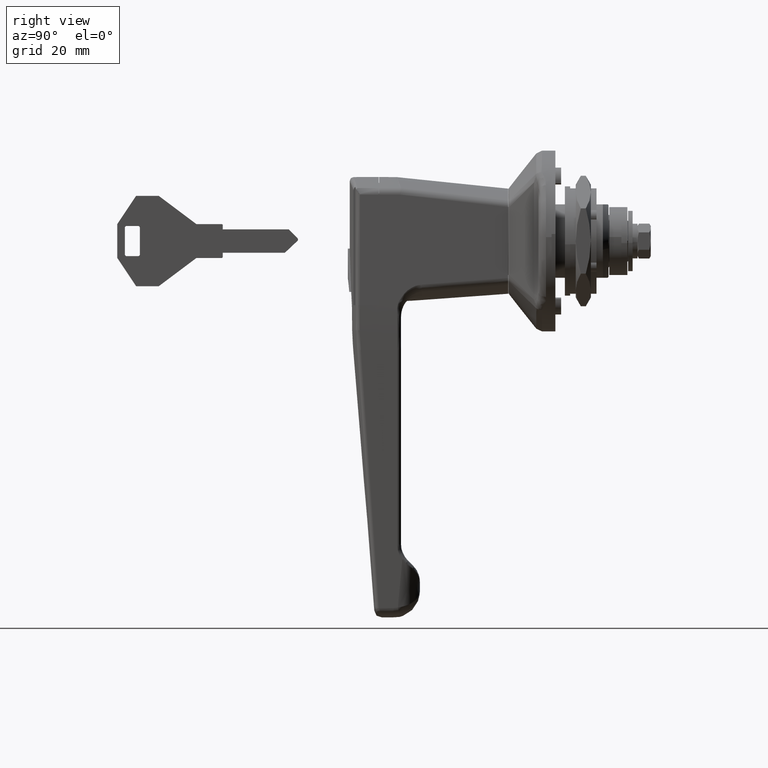
[diagram: clean part render]
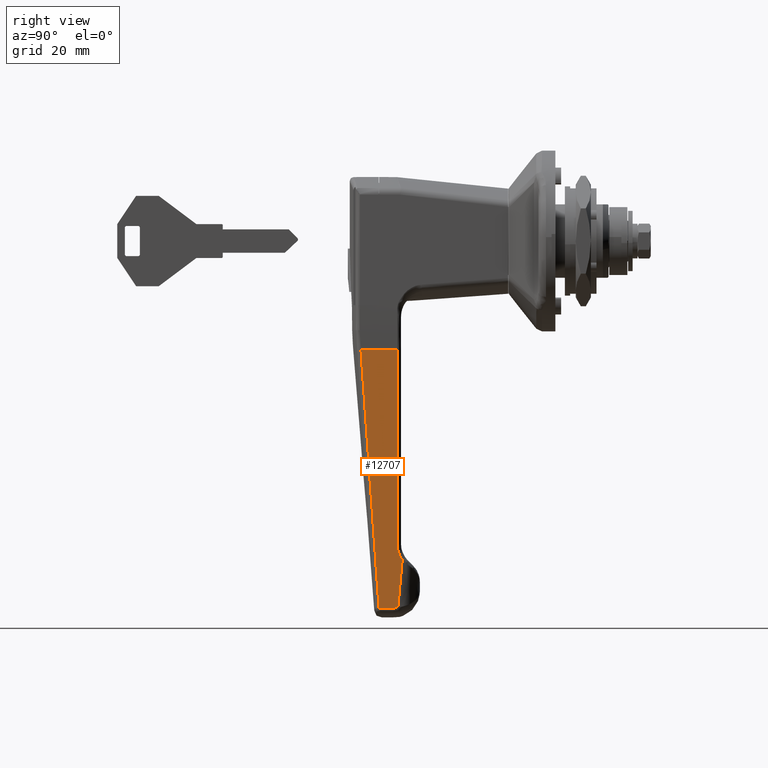
[diagram: same view with one face highlighted and labeled with its STEP entity id]
A machine part, right view. The second image highlights one B-rep face of the part: STEP entity #12707.
In plain terms, the highlighted face is a freeform B-spline surface patch.
Its self-contained STEP definition (entity closure, byte-faithful):
#7409=CARTESIAN_POINT('',(-42.0,-12.073825769527300,-28.897936895261651));
#7410=VERTEX_POINT('',#7409);
#7537=CARTESIAN_POINT('',(-42.0,-8.694515463715909,-80.579964860897306));
#7538=VERTEX_POINT('',#7537);
#7562=CARTESIAN_POINT('',(-42.0,-8.694515463715909,-80.579964860897306));
#7563=CARTESIAN_POINT('',(-42.0,-12.073825769527300,-28.897936895261651));
#7564=QUASI_UNIFORM_CURVE('',1,(#7562,#7563),.UNSPECIFIED.,.F.,.U.);
#7565=EDGE_CURVE('',#7538,#7410,#7564,.T.);
#7628=CARTESIAN_POINT('',(-40.691652699709749,-8.428069505302069,-84.654899160476305));
#7629=VERTEX_POINT('',#7628);
#7661=CARTESIAN_POINT('',(-40.691652699709749,-8.428069505302057,-84.654899160476475));
#7662=CARTESIAN_POINT('',(-42.0,-8.547558896826873,-82.827468852060449));
#7663=CARTESIAN_POINT('',(-42.0,-8.694515463715851,-80.579964860897306));
#7671=(BOUNDED_CURVE()B_SPLINE_CURVE(2,(#7661,#7662,#7663),.UNSPECIFIED.,.F.,.U.)CURVE()GEOMETRIC_REPRESENTATION_ITEM()QUASI_UNIFORM_CURVE()RATIONAL_B_SPLINE_CURVE((1.0,0.952127418682943,1.0))REPRESENTATION_ITEM(''));
#7672=EDGE_CURVE('',#7629,#7538,#7671,.T.);
#9767=CARTESIAN_POINT('',(-46.810766094548200,-7.592145216312230,-97.439242287070698));
#9768=VERTEX_POINT('',#9767);
#9836=CARTESIAN_POINT('',(-46.852808272678203,-7.607287954509600,-97.207654374694911));
#9837=VERTEX_POINT('',#9836);
#9838=CARTESIAN_POINT('',(-46.852808272678203,-7.607287954509600,-97.207654374694911));
#9839=CARTESIAN_POINT('',(-46.847095688982499,-7.602142254482236,-97.286350969162612));
#9840=CARTESIAN_POINT('',(-46.833181107993973,-7.597093499282290,-97.363564922254341));
#9841=CARTESIAN_POINT('',(-46.810766094548200,-7.592145216312230,-97.439242287070698));
#9842=QUASI_UNIFORM_CURVE('',3,(#9838,#9839,#9840,#9841),.UNSPECIFIED.,.F.,.U.);
#9843=EDGE_CURVE('',#9837,#9768,#9842,.T.);
#9878=CARTESIAN_POINT('',(-43.0,-7.592145216312230,-97.439242287070698));
#9879=VERTEX_POINT('',#9878);
#9893=CARTESIAN_POINT('',(-46.810766094548200,-7.592145216312230,-97.439242287070698));
#9894=CARTESIAN_POINT('',(-43.0,-7.592145216312230,-97.439242287070698));
#9895=QUASI_UNIFORM_CURVE('',1,(#9893,#9894),.UNSPECIFIED.,.F.,.U.);
#9896=EDGE_CURVE('',#9768,#9879,#9895,.T.);
#9957=CARTESIAN_POINT('',(-41.857309074168199,-7.601217082741310,-97.300500232609309));
#9958=VERTEX_POINT('',#9957);
#9972=CARTESIAN_POINT('',(-43.0,-7.592145216312230,-97.439242287070698));
#9973=CARTESIAN_POINT('',(-42.806731902380562,-7.592145216312231,-97.439242287070698));
#9974=CARTESIAN_POINT('',(-42.423050116375919,-7.593675854679708,-97.415833221979369));
#9975=CARTESIAN_POINT('',(-42.044944047653502,-7.598196396070048,-97.346697592098366));
#9976=CARTESIAN_POINT('',(-41.857309074168199,-7.601217082741361,-97.300500232609409));
#9977=B_SPLINE_CURVE_WITH_KNOTS('',3,(#9972,#9973,#9974,#9975,#9976),.UNSPECIFIED.,.F.,.U.,(4,1,4),(0.0,0.500000000000000,1.0),.UNSPECIFIED.);
#9978=EDGE_CURVE('',#9879,#9958,#9977,.T.);
#10398=CARTESIAN_POINT('',(-41.857309074168157,-7.601217082741328,-97.300500232609437));
#10399=CARTESIAN_POINT('',(-41.571539382778852,-7.803926360361405,-94.200333155072983));
#10400=CARTESIAN_POINT('',(-41.285769691389469,-8.006635637981507,-91.100166077536542));
#10401=CARTESIAN_POINT('',(-41.0,-8.209344915601619,-87.999999000000187));
#10402=CARTESIAN_POINT('',(-40.897217566569900,-8.282253112168434,-86.884965720158959));
#10403=CARTESIAN_POINT('',(-40.794435133139793,-8.355161308735250,-85.769932440317717));
#10404=CARTESIAN_POINT('',(-40.691652699709692,-8.428069505302062,-84.654899160476489));
#10405=B_SPLINE_CURVE_WITH_KNOTS('',3,(#10398,#10399,#10400,#10401,#10402,#10403,#10404),.UNSPECIFIED.,.F.,.U.,(4,3,4),(0.419075080750242,0.526276600374641,0.564833639089389),.UNSPECIFIED.);
#10406=EDGE_CURVE('',#9958,#7629,#10405,.T.);
#10911=CARTESIAN_POINT('',(-51.636799094111687,-12.073825769527300,-28.897936895261651));
#10912=VERTEX_POINT('',#10911);
#11061=CARTESIAN_POINT('',(-51.636799094111687,-12.073825769527300,-28.897936895261651));
#11062=CARTESIAN_POINT('',(-49.346518719111671,-9.853537041845463,-62.854281158321477));
#11063=CARTESIAN_POINT('',(-46.852808272678203,-7.607287954509600,-97.207654374694911));
#11071=(BOUNDED_CURVE()B_SPLINE_CURVE(2,(#11061,#11062,#11063),.UNSPECIFIED.,.F.,.U.)CURVE()GEOMETRIC_REPRESENTATION_ITEM()QUASI_UNIFORM_CURVE()RATIONAL_B_SPLINE_CURVE((1.0,0.999266857121218,1.0))REPRESENTATION_ITEM(''));
#11072=EDGE_CURVE('',#10912,#9837,#11071,.T.);
#12688=CARTESIAN_POINT('',(-52.183508851600337,-7.368285465660453,-100.862877540000600));
#12689=CARTESIAN_POINT('',(-52.183508851600337,-12.297685480109729,-25.474302255138781));
#12690=CARTESIAN_POINT('',(-40.144944018650683,-7.368285465660453,-100.862877540000600));
#12691=CARTESIAN_POINT('',(-40.144944018650683,-12.297685480109729,-25.474302255138781));
#12692=B_SPLINE_SURFACE_WITH_KNOTS('',1,1,((#12688,#12690),(#12689,#12691)),.UNSPECIFIED.,.F.,.F.,.U.,(2,2),(2,2),(0.0,75.549561666390431),(0.0,12.038564832949660),.UNSPECIFIED.);
#12693=ORIENTED_EDGE('',*,*,#10406,.T.);
#12694=ORIENTED_EDGE('',*,*,#7672,.T.);
#12695=ORIENTED_EDGE('',*,*,#7565,.T.);
#12696=CARTESIAN_POINT('',(-42.0,-12.073825769527300,-28.897936895261651));
#12697=CARTESIAN_POINT('',(-51.636799094111687,-12.073825769527300,-28.897936895261651));
#12698=QUASI_UNIFORM_CURVE('',1,(#12696,#12697),.UNSPECIFIED.,.F.,.U.);
#12699=EDGE_CURVE('',#7410,#10912,#12698,.T.);
#12700=ORIENTED_EDGE('',*,*,#12699,.T.);
#12701=ORIENTED_EDGE('',*,*,#11072,.T.);
#12702=ORIENTED_EDGE('',*,*,#9843,.T.);
#12703=ORIENTED_EDGE('',*,*,#9896,.T.);
#12704=ORIENTED_EDGE('',*,*,#9978,.T.);
#12705=EDGE_LOOP('',(#12693,#12694,#12695,#12700,#12701,#12702,#12703,#12704));
#12706=FACE_OUTER_BOUND('',#12705,.T.);
#12707=ADVANCED_FACE('',(#12706),#12692,.F.);